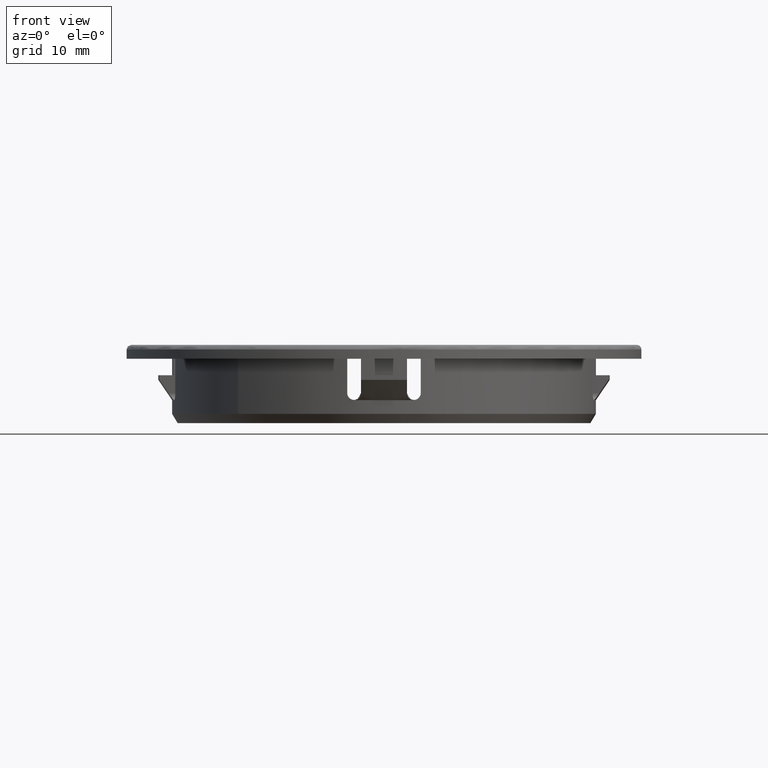
[diagram: clean part render]
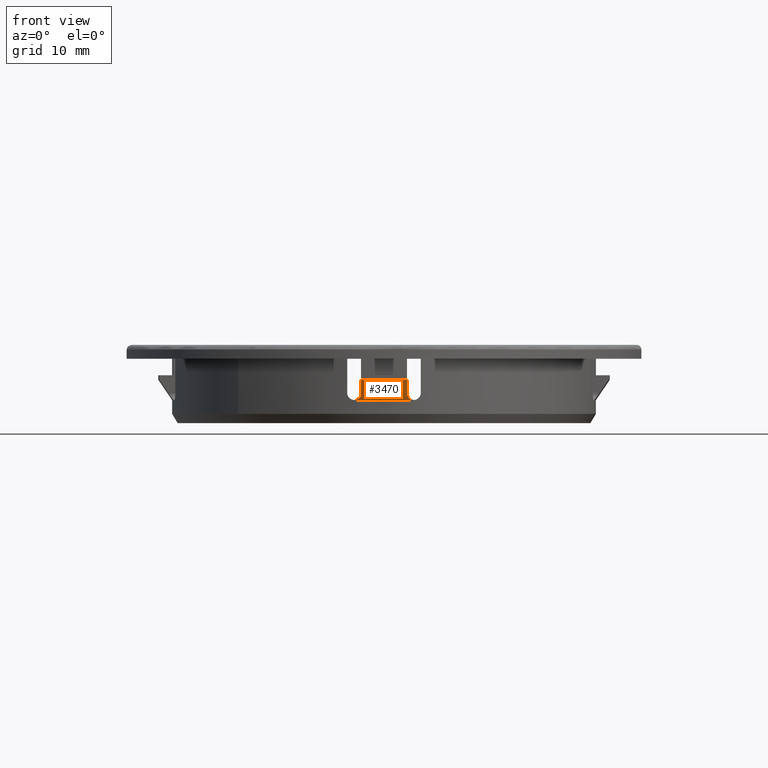
[diagram: same view with one face highlighted and labeled with its STEP entity id]
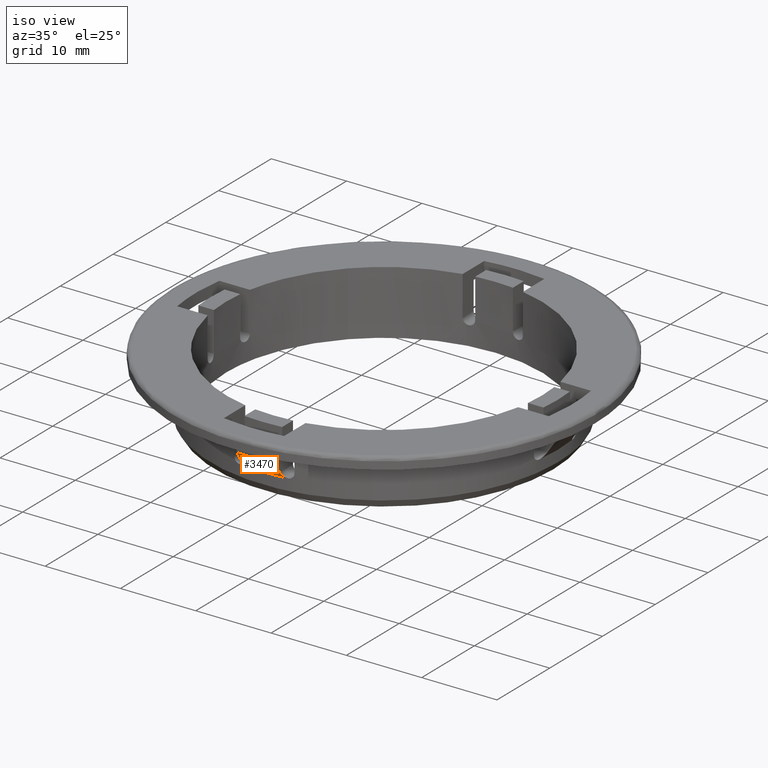
[diagram: same view with one face highlighted and labeled with its STEP entity id]
A machine part, front view. The second image highlights one B-rep face of the part: STEP entity #3470.
A second angle (iso view) of the same face is appended — the face is thin or edge-on in the first view.
In plain terms, the highlighted face is a freeform B-spline surface patch.
Its self-contained STEP definition (entity closure, byte-faithful):
#1502=CARTESIAN_POINT('',(3.250000000000000,-22.819728306883899,2.500000000000000));
#1503=VERTEX_POINT('',#1502);
#1531=CARTESIAN_POINT('',(-3.250000000000000,-22.819728306883899,2.500000000000000));
#1532=VERTEX_POINT('',#1531);
#1533=CARTESIAN_POINT('',(3.250000000000018,-22.819728306883938,2.500000000000000));
#1534=CARTESIAN_POINT('',(1.778092E-014,-23.282595342720366,2.500000000000000));
#1535=CARTESIAN_POINT('',(-3.249999999999989,-22.819728306883938,2.500000000000000));
#1543=(BOUNDED_CURVE()B_SPLINE_CURVE(2,(#1533,#1534,#1535),.UNSPECIFIED.,.F.,.U.)CURVE()GEOMETRIC_REPRESENTATION_ITEM()QUASI_UNIFORM_CURVE()RATIONAL_B_SPLINE_CURVE((1.0,0.990009904853967,1.0))REPRESENTATION_ITEM(''));
#1544=EDGE_CURVE('',#1503,#1532,#1543,.T.);
#2042=CARTESIAN_POINT('',(2.500000000000000,-23.428355819496950,3.250000000000000));
#2043=VERTEX_POINT('',#2042);
#2044=CARTESIAN_POINT('',(3.250000000000000,-22.819728306883899,2.500000000000000));
#2045=CARTESIAN_POINT('',(3.194209167727566,-22.827674072164150,2.500000000000000));
#2046=CARTESIAN_POINT('',(3.140300889540110,-22.839371210220691,2.506138890184645));
#2047=CARTESIAN_POINT('',(3.061930420625511,-22.861884664890109,2.523470135027638));
#2048=CARTESIAN_POINT('',(3.036130350495851,-22.870262572825911,2.530649752895773));
#2049=CARTESIAN_POINT('',(2.985795840780706,-22.888525972718671,2.547574795982402));
#2050=CARTESIAN_POINT('',(2.961516486517351,-22.898310031613210,2.557220846144451));
#2051=CARTESIAN_POINT('',(2.914589713281939,-22.919082009350220,2.578683656439223));
#2052=CARTESIAN_POINT('',(2.891942964013745,-22.930070419448590,2.590501310001472));
#2053=CARTESIAN_POINT('',(2.848204255985285,-22.953200094223781,2.616199129678179));
#2054=CARTESIAN_POINT('',(2.827020895808603,-22.965401083860481,2.630150123167499));
#2055=CARTESIAN_POINT('',(2.766503994597939,-23.003237589630569,2.674472083798271));
#2056=CARTESIAN_POINT('',(2.730282082199216,-23.029975809970420,2.707131345292400));
#2057=CARTESIAN_POINT('',(2.665199905242938,-23.086211801146298,2.777959811542115));
#2058=CARTESIAN_POINT('',(2.636290701650712,-23.115867844238910,2.816353902341811));
#2059=CARTESIAN_POINT('',(2.587164413266633,-23.176039518802341,2.895970303711136));
#2060=CARTESIAN_POINT('',(2.566673141581937,-23.206758185978732,2.937441578016508));
#2061=CARTESIAN_POINT('',(2.541806291361684,-23.253782522057438,3.002020642608572));
#2062=CARTESIAN_POINT('',(2.534483202608925,-23.269671213268140,3.024022682630884));
#2063=CARTESIAN_POINT('',(2.521969936910062,-23.301420174540802,3.068334751393168));
#2064=CARTESIAN_POINT('',(2.516765435051588,-23.317290736040651,3.090657436063498));
#2065=CARTESIAN_POINT('',(2.504246367947715,-23.364896331687920,3.158111807357763));
#2066=CARTESIAN_POINT('',(2.500000000000000,-23.396625803166319,3.203725353837854));
#2067=CARTESIAN_POINT('',(2.500000000000000,-23.428355819496950,3.250000000000000));
#2068=B_SPLINE_CURVE_WITH_KNOTS('',3,(#2044,#2045,#2046,#2047,#2048,#2049,#2050,#2051,#2052,#2053,#2054,#2055,#2056,#2057,#2058,#2059,#2060,#2061,#2062,#2063,#2064,#2065,#2066,#2067),.UNSPECIFIED.,.F.,.U.,(4,2,2,2,2,2,2,2,2,2,2,4),(0.0,0.125000000000002,0.187500000000002,0.250000000000001,0.312500000000001,0.375000000000001,0.500000000000002,0.625000000000002,0.750000000000003,0.812500000000001,0.874999999999999,1.0),.UNSPECIFIED.);
#2069=EDGE_CURVE('',#1503,#2043,#2068,.T.);
#2110=CARTESIAN_POINT('',(-2.500000000000000,-23.428355819496950,3.250000000000000));
#2111=VERTEX_POINT('',#2110);
#2112=CARTESIAN_POINT('',(-2.500000000000000,-23.428355819496950,3.250000000000000));
#2113=CARTESIAN_POINT('',(-2.500000000000000,-23.396573763469330,3.203649459815634));
#2114=CARTESIAN_POINT('',(-2.504259337954732,-23.364905156759431,3.158126760407070));
#2115=CARTESIAN_POINT('',(-2.520832694110702,-23.301766563596608,3.068658148230590));
#2116=CARTESIAN_POINT('',(-2.533147871979507,-23.270296742546130,3.024712365485682));
#2117=CARTESIAN_POINT('',(-2.557930729053509,-23.223222781848019,2.960046560393187));
#2118=CARTESIAN_POINT('',(-2.567300538775449,-23.207484964310598,2.938610167212583));
#2119=CARTESIAN_POINT('',(-2.587931806885491,-23.176550627846989,2.896859956977750));
#2120=CARTESIAN_POINT('',(-2.599200297350305,-23.161321159500911,2.876499121727228));
#2121=CARTESIAN_POINT('',(-2.635869063517399,-23.116337889894261,2.816969020730906));
#2122=CARTESIAN_POINT('',(-2.664104203698094,-23.087282735966870,2.779336350031751));
#2123=CARTESIAN_POINT('',(-2.728795870108977,-23.031140698369320,2.708571878722374));
#2124=CARTESIAN_POINT('',(-2.765680182256886,-23.003827249368740,2.675187211395595));
#2125=CARTESIAN_POINT('',(-2.845854230574675,-22.953553456336451,2.616247978419391));
#2126=CARTESIAN_POINT('',(-2.889290152432295,-22.930366147202530,2.590384146437527));
#2127=CARTESIAN_POINT('',(-2.960159519591807,-22.898870024070540,2.557779902763838));
#2128=CARTESIAN_POINT('',(-2.984777250744819,-22.888926022108571,2.547963624197497));
#2129=CARTESIAN_POINT('',(-3.034840092812626,-22.870701639858051,2.531039365464622));
#2130=CARTESIAN_POINT('',(-3.060425940770312,-22.862353855430381,2.523859274466863));
#2131=CARTESIAN_POINT('',(-3.138918256595630,-22.839697420230792,2.506336396531034));
#2132=CARTESIAN_POINT('',(-3.194074077324784,-22.827693311823928,2.499999999999999));
#2133=CARTESIAN_POINT('',(-3.250000000000000,-22.819728306883899,2.500000000000000));
#2134=B_SPLINE_CURVE_WITH_KNOTS('',3,(#2112,#2113,#2114,#2115,#2116,#2117,#2118,#2119,#2120,#2121,#2122,#2123,#2124,#2125,#2126,#2127,#2128,#2129,#2130,#2131,#2132,#2133),.UNSPECIFIED.,.F.,.U.,(4,2,2,2,2,2,2,2,2,2,4),(0.0,0.124999999999996,0.249999999999992,0.312499999999992,0.374999999999992,0.499999999999993,0.624999999999994,0.749999999999995,0.812499999999997,0.874999999999999,1.0),.UNSPECIFIED.);
#2135=EDGE_CURVE('',#2111,#1532,#2134,.T.);
#2817=CARTESIAN_POINT('',(-2.500000000000000,-24.422377034187299,4.700000000000000));
#2818=VERTEX_POINT('',#2817);
#2819=CARTESIAN_POINT('',(-2.500000000000000,-23.428355819496979,3.249999999999979));
#2820=CARTESIAN_POINT('',(-2.500000000000000,-23.759747893853291,3.733297922761306));
#2821=CARTESIAN_POINT('',(-2.500000000000000,-24.091086202854619,4.216632692472292));
#2822=CARTESIAN_POINT('',(-2.500000000000000,-24.422377034187310,4.699999999999992));
#2823=QUASI_UNIFORM_CURVE('',3,(#2819,#2820,#2821,#2822),.UNSPECIFIED.,.F.,.U.);
#2824=EDGE_CURVE('',#2111,#2818,#2823,.T.);
#3130=CARTESIAN_POINT('',(2.500000000000000,-24.422377034187299,4.700000000000000));
#3131=VERTEX_POINT('',#3130);
#3132=CARTESIAN_POINT('',(2.500000000000000,-24.422377034187310,4.699999999999994));
#3133=CARTESIAN_POINT('',(2.500000000000000,-24.091086202854619,4.216632692472293));
#3134=CARTESIAN_POINT('',(2.500000000000000,-23.759747893853302,3.733297922761308));
#3135=CARTESIAN_POINT('',(2.500000000000000,-23.428355819496979,3.249999999999981));
#3136=QUASI_UNIFORM_CURVE('',3,(#3132,#3133,#3134,#3135),.UNSPECIFIED.,.F.,.U.);
#3137=EDGE_CURVE('',#3131,#2043,#3136,.T.);
#3436=CARTESIAN_POINT('',(3.443402225893723,-22.753420344218799,2.444999999999999));
#3437=CARTESIAN_POINT('',(3.679212620043397,-24.311615602175010,4.756375000000000));
#3438=CARTESIAN_POINT('',(-0.062602304485680,-23.284003598132504,2.444999999999999));
#3439=CARTESIAN_POINT('',(-0.066889423191836,-24.878534154153446,4.756375000000000));
#3440=CARTESIAN_POINT('',(-3.565703072780255,-22.734575383032013,2.444999999999999));
#3441=CARTESIAN_POINT('',(-3.809888849478123,-24.291480104061751,4.756375000000000));
#3449=(BOUNDED_SURFACE()B_SPLINE_SURFACE(1,2,((#3436,#3438,#3440),(#3437,#3439,#3441)),.UNSPECIFIED.,.F.,.F.,.U.)B_SPLINE_SURFACE_WITH_KNOTS((2,2),(3,3),(0.0,2.797504851565277),(0.0,7.533056494296458),.UNSPECIFIED.)GEOMETRIC_REPRESENTATION_ITEM()RATIONAL_B_SPLINE_SURFACE(((1.0,0.986698457254730,0.996689195045239),(1.0,0.986698457254730,0.996689195045239)))REPRESENTATION_ITEM('')SURFACE());
#3450=ORIENTED_EDGE('',*,*,#2824,.F.);
#3451=ORIENTED_EDGE('',*,*,#2135,.T.);
#3452=ORIENTED_EDGE('',*,*,#1544,.F.);
#3453=ORIENTED_EDGE('',*,*,#2069,.T.);
#3454=ORIENTED_EDGE('',*,*,#3137,.F.);
#3455=CARTESIAN_POINT('',(2.500000000000011,-24.422377034187310,4.700000000000000));
#3456=CARTESIAN_POINT('',(9.107298E-015,-24.678289879658955,4.700000000000000));
#3457=CARTESIAN_POINT('',(-2.500000000000002,-24.422377034187310,4.700000000000000));
#3465=(BOUNDED_CURVE()B_SPLINE_CURVE(2,(#3455,#3456,#3457),.UNSPECIFIED.,.F.,.U.)CURVE()GEOMETRIC_REPRESENTATION_ITEM()QUASI_UNIFORM_CURVE()RATIONAL_B_SPLINE_CURVE((1.0,0.994801508520868,1.0))REPRESENTATION_ITEM(''));
#3466=EDGE_CURVE('',#3131,#2818,#3465,.T.);
#3467=ORIENTED_EDGE('',*,*,#3466,.T.);
#3468=EDGE_LOOP('',(#3450,#3451,#3452,#3453,#3454,#3467));
#3469=FACE_OUTER_BOUND('',#3468,.T.);
#3470=ADVANCED_FACE('',(#3469),#3449,.T.);